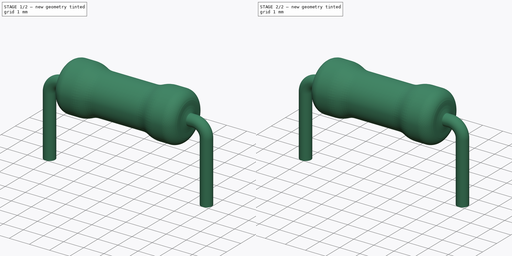
[diagram: build sequence overview — one tinted view per stage of 2, left to right]
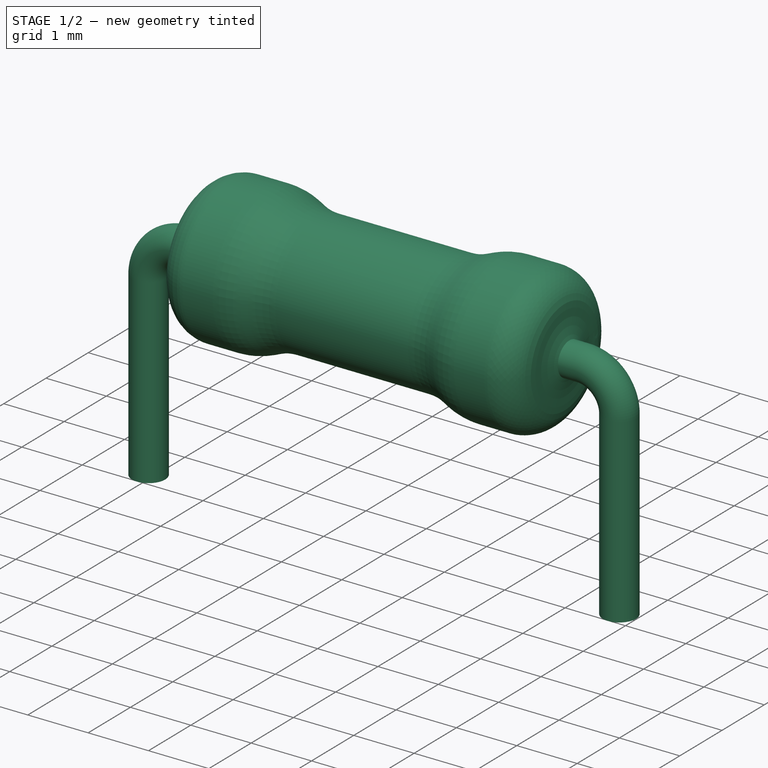
[diagram: stage 1 of 2 — iso view after this stage's code; geometry added in this stage tinted green]
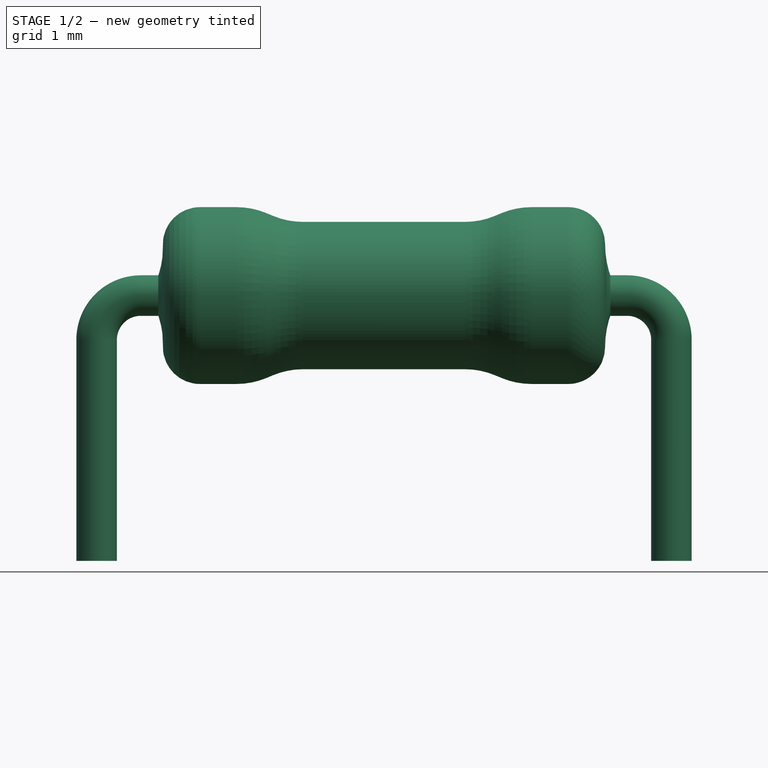
[diagram: stage 1 of 2 — front view after this stage's code; geometry added in this stage tinted green]
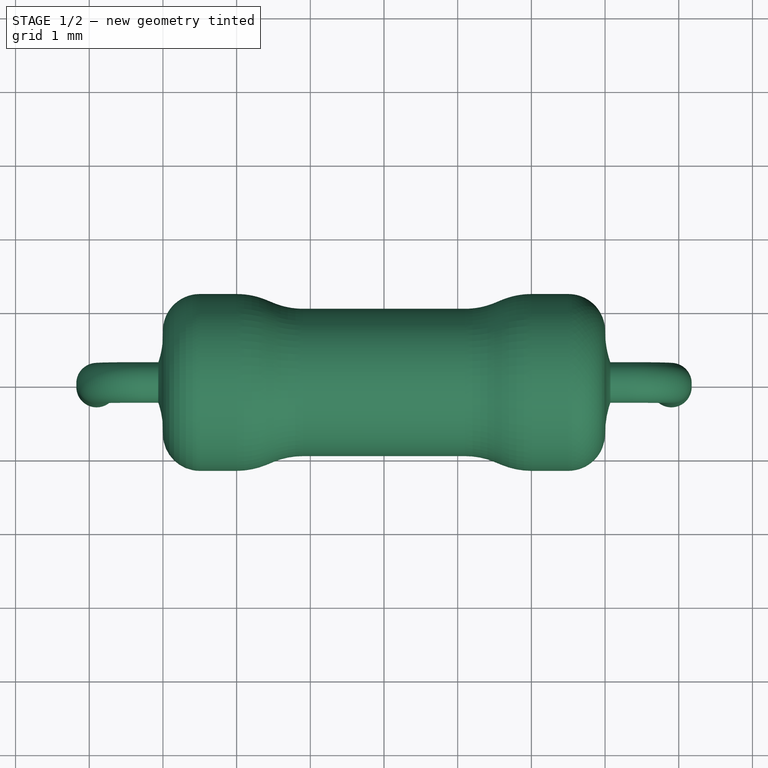
[diagram: stage 1 of 2 — top view after this stage's code; geometry added in this stage tinted green]
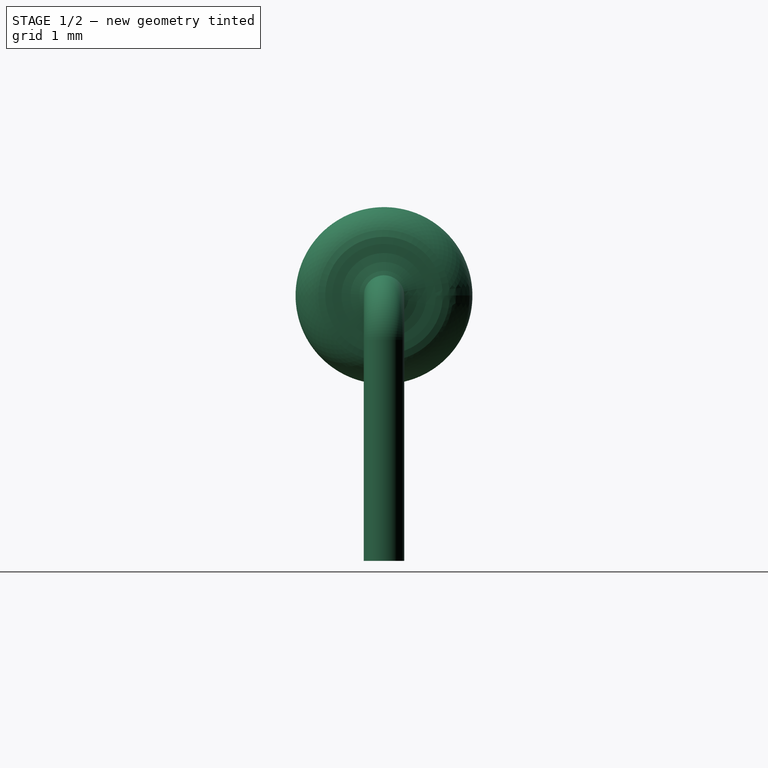
[diagram: stage 1 of 2 — right view after this stage's code; geometry added in this stage tinted green]
FCSTD DOCUMENT  (FreeCAD 0.16R6707 (Git))
Label: RESAD780W55L630D240B
License: All rights reserved
LicenseURL: http://en.wikipedia.org/wiki/All_rights_reserved
objects: Sketcher::SketchObject×3, Part::Sweep×1, Part::Revolution×1, Part::Fuse×1
note: 6 computed .brp shape members not serialized (recipe doc carries the construction recipe); baked Part::Feature solids carry a one-line shape summary decoded from their .brp

FEATURE [Sketcher::SketchObject] Sketch  label="Wires"
  sketch-geometry (5):
    g0: LineSegment StartX=-3.9 StartY=3.6 StartZ=0 EndX=-3.9 EndY=0.6 EndZ=0
    g1: LineSegment StartX=-3.3 StartY=0 StartZ=0 EndX=3.3 EndY=0 EndZ=0
    g2: LineSegment StartX=3.9 StartY=0.6 StartZ=0 EndX=3.9 EndY=3.6 EndZ=0
    g3: ArcOfCircle CenterX=-3.3 CenterY=0.6 CenterZ=0 NormalX=0 NormalY=0 NormalZ=1 Radius=0.6 StartAngle=3.14159 EndAngle=4.71239
    g4: ArcOfCircle CenterX=3.3 CenterY=0.6 CenterZ=0 NormalX=0 NormalY=0 NormalZ=1 Radius=0.6 StartAngle=4.71239 EndAngle=6.28319
  constraints (18):
    c: Vertical(g0)
    c: Vertical(g2)
    c: DistanceX(g0,g-1) = 3.9
    c: DistanceX(g-1,g2) = 3.9
    c: Distance(g2) = 3
    c: DistanceY(g0,g0) = 3
    c: DistanceY(g-1,g1) = 0
    c: DistanceY(g-1,g1) = 0
    c: Coincident(g3,g1)
    c: Coincident(g3,g0)
    c: Coincident(g4,g1)
    c: Coincident(g4,g2)
    c: Radius(g3) = 0.6
    c: Radius(g4) = 0.6
    c: DistanceX(g1,g-1) = 3.3
    c: DistanceX(g-1,g1) = 3.3
    c: DistanceY(g-1,g0) = 0.6
    c: DistanceY(g-1,g2) = 0.6
FEATURE [Sketcher::SketchObject] Sketch001  label="RevolutionWire"
  Placement = pos=(0,0,0) rot=(0.57735,0.57735,0.57735;2.0944rad)
  sketch-geometry (1):
    g0: Circle CenterX=0 CenterY=0 CenterZ=0 NormalX=0 NormalY=0 NormalZ=1 Radius=0.275
  constraints (1):
    c: Radius(g0) = 0.275
FEATURE [Part::Sweep] Sweep
  Frenet = false
  Placement = pos=(0,0,1.3) rot=(-1,0,0;1.5708rad)
  Sections = -> [Sketch001]
  Solid = true
  Spine = -> Sketch [Edge1,Edge2,Edge3,Edge4,Edge5]
  Transition = 1
FEATURE [Sketcher::SketchObject] Sketch002  label="SketchResistor"
  Placement = pos=(0,0,0) rot=(1,0,0;1.5708rad)
  sketch-geometry (16):
    g0: LineSegment StartX=-2.5 StartY=1.2 StartZ=0 EndX=-2 EndY=1.2 EndZ=0
    g1: LineSegment StartX=2.5 StartY=1.2 StartZ=0 EndX=2 EndY=1.2 EndZ=0
    g2: LineSegment StartX=-1.6 StartY=1.12065 StartZ=0 EndX=-1.5 EndY=1.07935 EndZ=0
    g3: LineSegment StartX=1.6 StartY=1.12065 StartZ=0 EndX=1.5 EndY=1.07935 EndZ=0
    g4: LineSegment StartX=1.1 StartY=1 StartZ=0 EndX=-1.1 EndY=1 EndZ=0
    g5: ArcOfCircle CenterX=2 CenterY=0.152132 CenterZ=0 NormalX=0 NormalY=0 NormalZ=1 Radius=1.04787 StartAngle=1.5708 EndAngle=1.96246
    g6: ArcOfCircle CenterX=-2 CenterY=0.152132 CenterZ=0 NormalX=0 NormalY=0 NormalZ=1 Radius=1.04787 StartAngle=1.17913 EndAngle=1.5708
    g7: ArcOfCircle CenterX=1.1 CenterY=2.04787 CenterZ=0 NormalX=0 NormalY=0 NormalZ=1 Radius=1.04787 StartAngle=4.71239 EndAngle=5.10405
    g8: ArcOfCircle CenterX=-1.1 CenterY=2.04787 CenterZ=0 NormalX=0 NormalY=0 NormalZ=1 Radius=1.04787 StartAngle=4.32072 EndAngle=4.71239
    g9: ArcOfCircle CenterX=-2.5 CenterY=0.7 CenterZ=0 NormalX=0 NormalY=0 NormalZ=1 Radius=0.5 StartAngle=1.5708 EndAngle=3.17141
    g10: ArcOfCircle CenterX=2.5 CenterY=0.7 CenterZ=0 NormalX=0 NormalY=0 NormalZ=1 Radius=0.5 StartAngle=-1.1e-11 EndAngle=1.5708
    g11: ArcOfCircle CenterX=4.32357 CenterY=0.699591 CenterZ=0 NormalX=0 NormalY=0 NormalZ=1 Radius=1.32357 StartAngle=3.14128 EndAngle=3.6985
    g12: GeomPoint [constr] X=3.2 Y=0 Z=0
    g13: GeomPoint [constr] X=-3.2 Y=0 Z=0
    g14: ArcOfCircle CenterX=-4.15438 CenterY=0.650726 CenterZ=0 NormalX=0 NormalY=0 NormalZ=1 Radius=1.15511 StartAngle=5.68476 EndAngle=6.31294
    g15: LineSegment StartX=3.2 StartY=0 StartZ=0 EndX=-3.2 EndY=0 EndZ=0
  constraints (38):
    c: Horizontal(g0)
    c: Horizontal(g1)
    c: Horizontal(g4)
    c: Tangent(g3,g5) = -1.5708
    c: Tangent(g1,g5) = -1.5708
    c: Tangent(g2,g6) = 1.5708
    c: Tangent(g0,g6) = 1.5708
    c: Tangent(g3,g7) = 1.5708
    c: Tangent(g4,g7) = 1.5708
    c: Tangent(g2,g8) = -1.5708
    c: Tangent(g4,g8) = 1.5708
    c: Tangent(g0,g9) = 1.5708
    c: Tangent(g1,g10) = -1.5708
    c: DistanceY(g-1,g0) = 1.2
    c: DistanceY(g-1,g1) = 1.2
    c: DistanceY(g-1,g4) = 1
    c: DistanceX(g-1,g4) = 1.1
    c: DistanceX(g4,g-1) = 1.1
    c: DistanceX(g0,g-1) = 2
    c: DistanceX(g-1,g1) = 2
    c: DistanceX(g1,g1) = 0.5
    c: DistanceX(g0,g0) = 0.5
    c: DistanceX(g0,g2) = 0.4
    c: DistanceX(g3,g1) = 0.4
    c: DistanceX(g2,g4) = 0.4
    c: DistanceX(g4,g3) = 0.4
    c: Radius(g9) = 0.5
    c: Radius(g10) = 0.5
    c: Coincident(g11,g10)
    c: PointOnObject(g12,g-1)
    c: DistanceX(g-1,g12) = 3.2
    c: Coincident(g11,g12)
    c: PointOnObject(g13,g-1)
    c: DistanceX(g13,g-1) = 3.2
    c: Coincident(g14,g13)
    c: Coincident(g14,g9)
    c: Coincident(g15,g11)
    c: Coincident(g15,g13)
FEATURE [Part::Revolution] Revolve
  Angle = 360
  Axis = (1,0,0)
  Base = (0,0,0)
  Placement = pos=(0,0,1.3) rot=(-1,0,0;1.5708rad)
  Solid = true
  Source = -> Sketch002
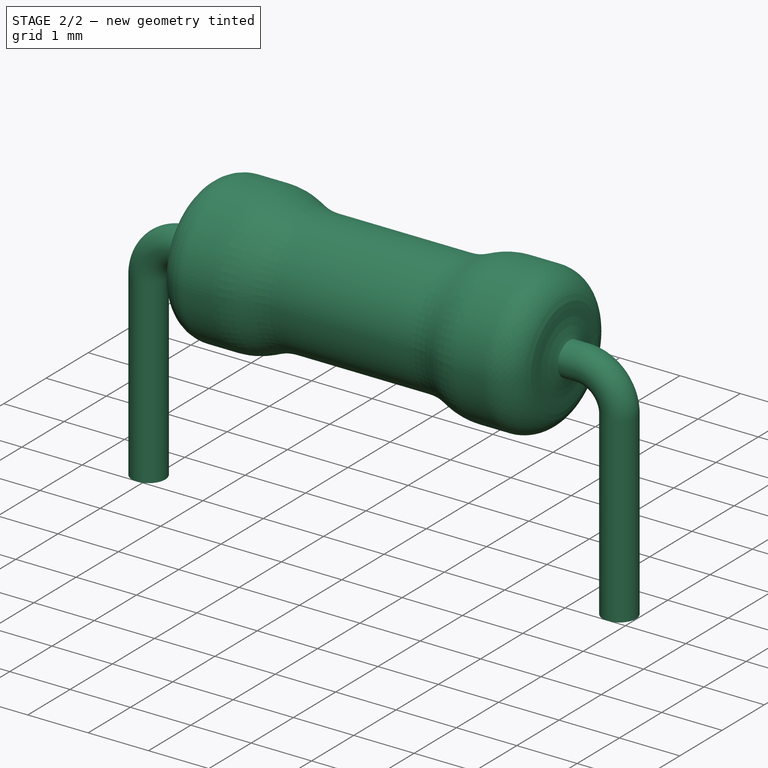
[diagram: stage 2 of 2 — iso view after this stage's code; geometry added in this stage tinted green]
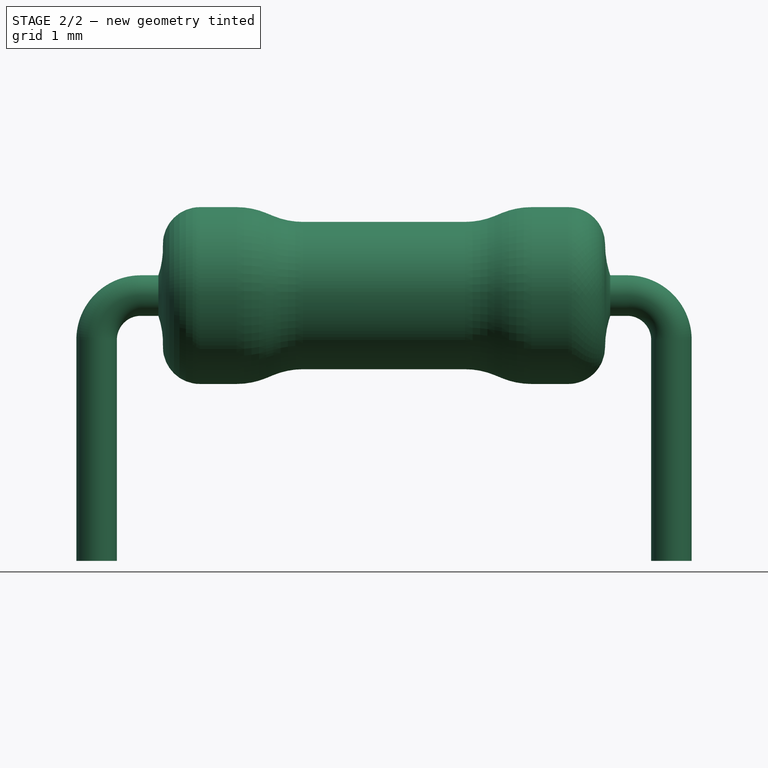
[diagram: stage 2 of 2 — front view after this stage's code; geometry added in this stage tinted green]
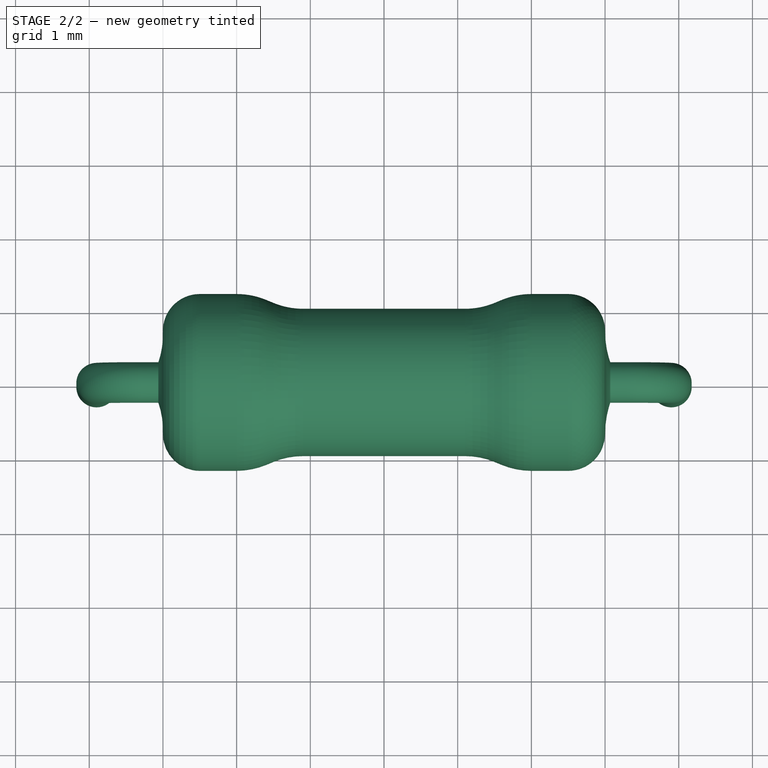
[diagram: stage 2 of 2 — top view after this stage's code; geometry added in this stage tinted green]
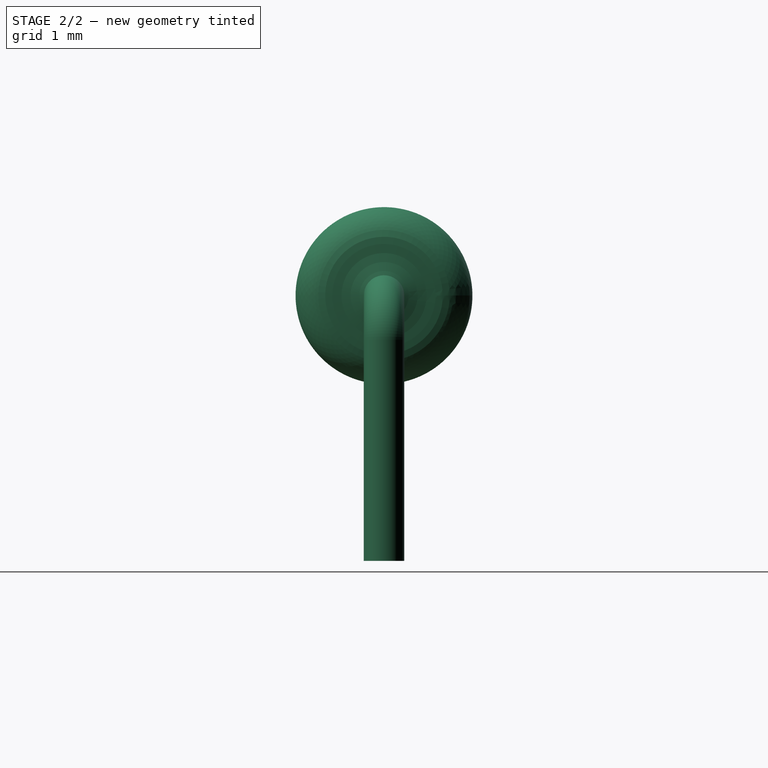
[diagram: stage 2 of 2 — right view after this stage's code; geometry added in this stage tinted green]
FEATURE [Part::Fuse] Fusion  label="Resistor"
  Base = -> Sweep
  Tool = -> Revolve
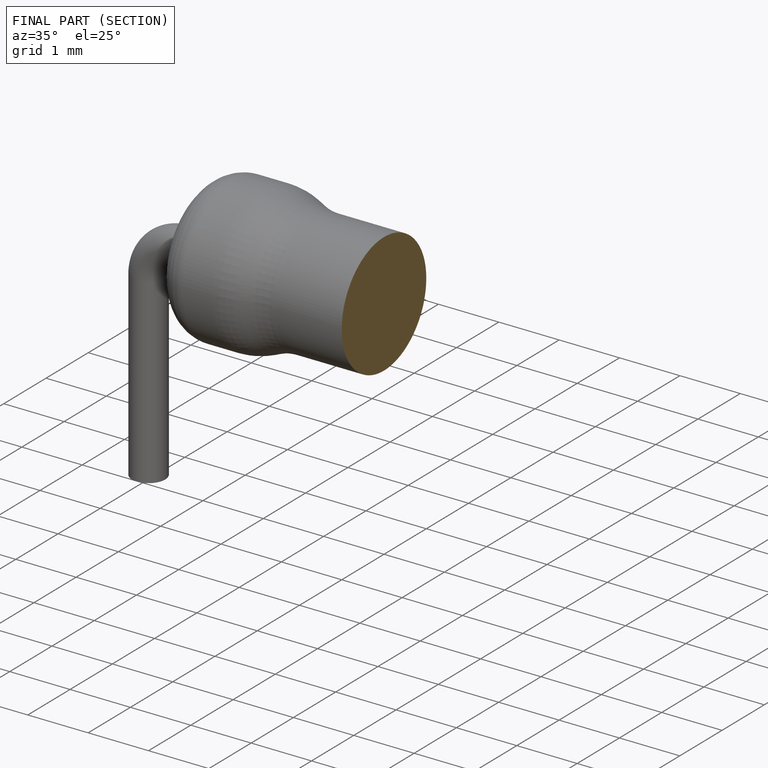
[diagram: finished part — half-section view (interior)]
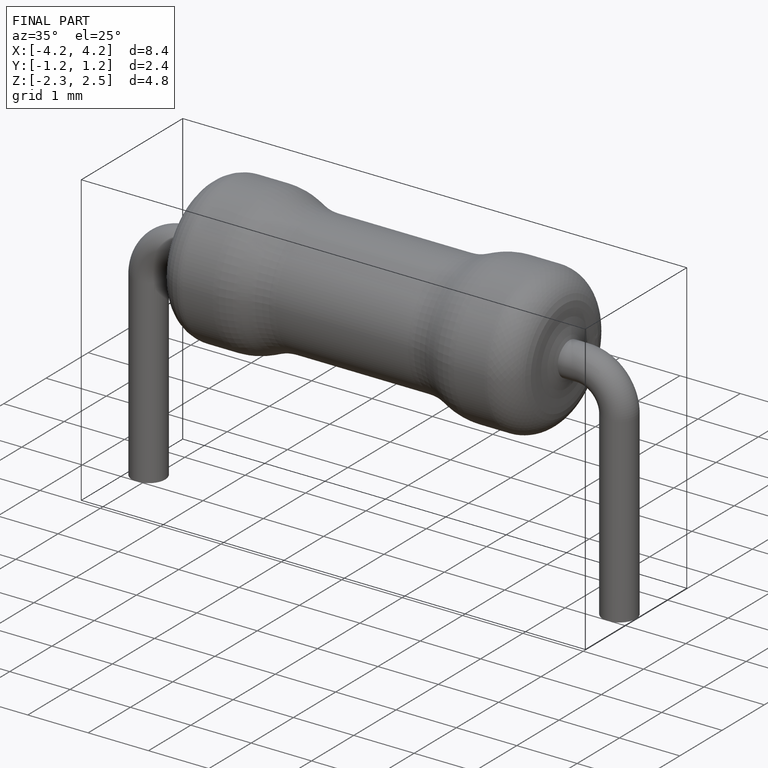
[diagram: finished part — iso view with bounding-box wireframe]
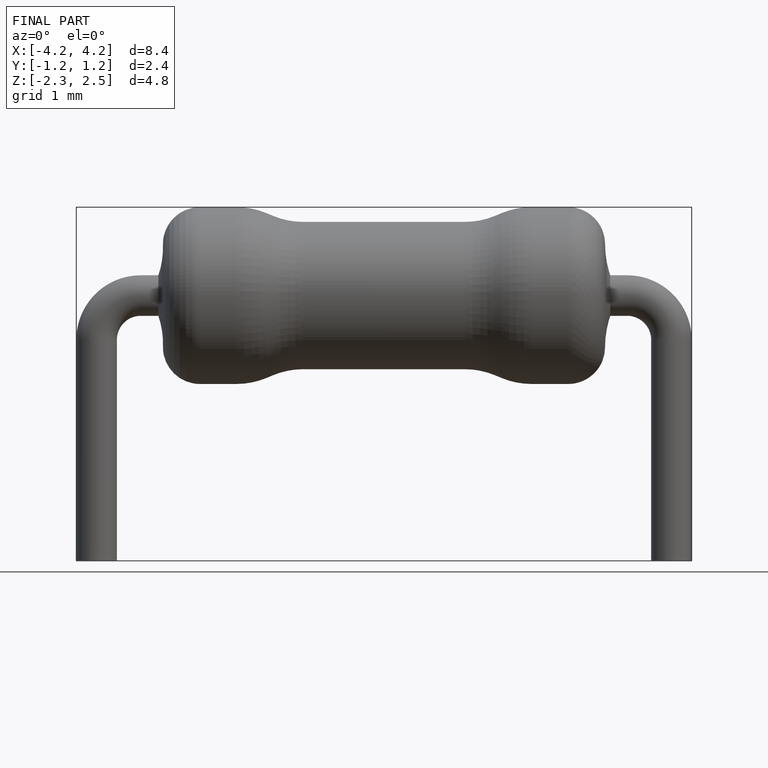
[diagram: finished part — front view with bounding-box wireframe]
